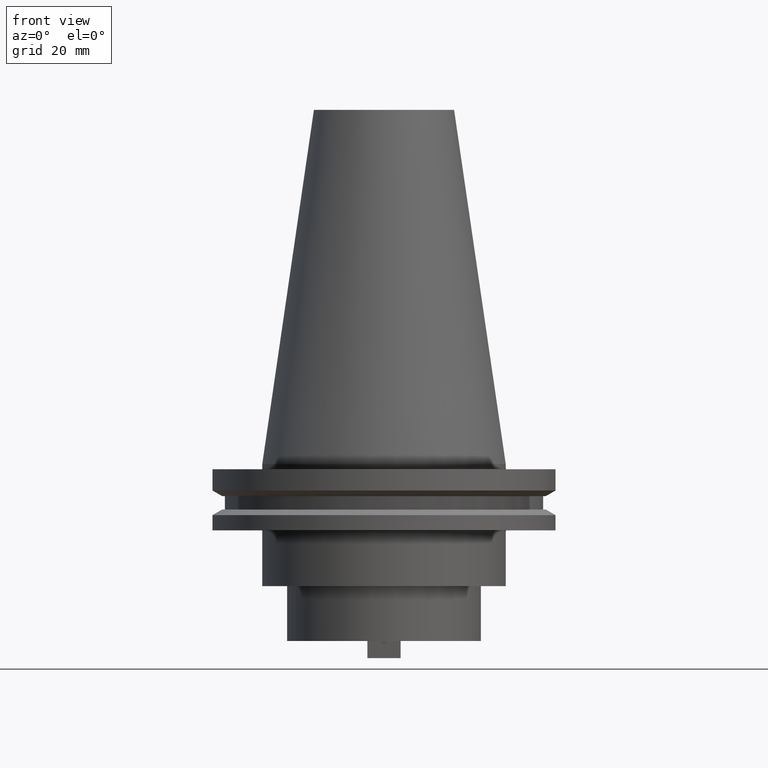
[diagram: clean part render]
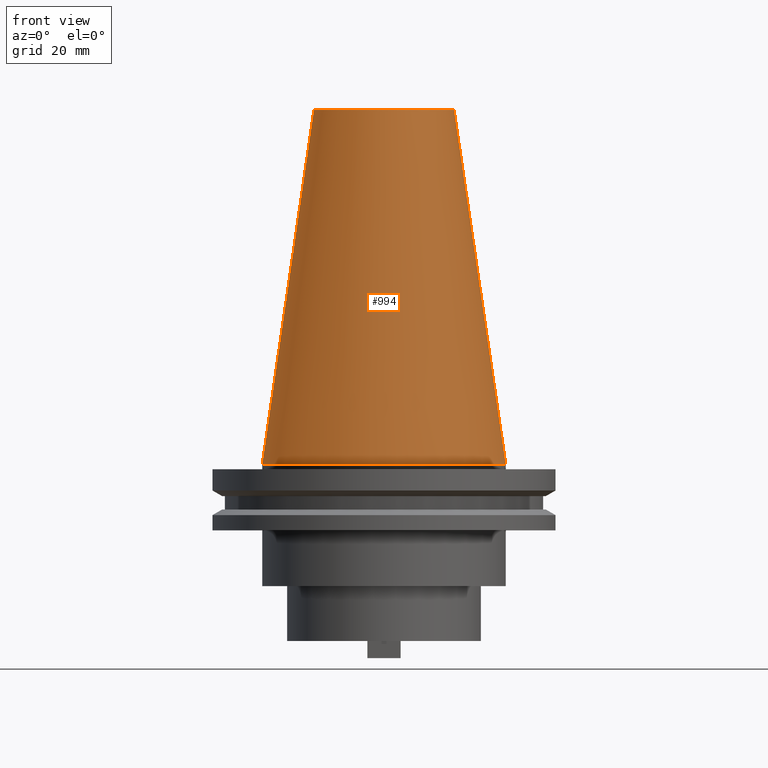
[diagram: same view with one face highlighted and labeled with its STEP entity id]
A machine part, front view. The second image highlights one B-rep face of the part: STEP entity #994.
In plain terms, the highlighted conical surface has half-angle 8.297 deg.
Its self-contained STEP definition (entity closure, byte-faithful):
#66 = DIRECTION ( 'NONE',  ( 0.1443082272672999988, 1.767266086135277066E-17, -0.9895327864921755756 ) ) ;
#112 = DIRECTION ( 'NONE',  ( 1.000000000000000000, 0.000000000000000000, 0.000000000000000000 ) ) ;
#113 = EDGE_CURVE ( 'NONE', #477, #471, #862, .T. ) ;
#122 = DIRECTION ( 'NONE',  ( -0.000000000000000000, -0.000000000000000000, 1.000000000000000000 ) ) ;
#123 = DIRECTION ( 'NONE',  ( -0.1443082272672999988, 0.000000000000000000, -0.9895327864921755756 ) ) ;
#260 = CARTESIAN_POINT ( 'NONE',  ( 34.92499999999999005, 4.277078946022130098E-15, 0.000000000000000000 ) ) ;
#266 = CONICAL_SURFACE ( 'NONE', #511, 34.92499999999999005, 0.1448138465474119452 ) ;
#328 = VECTOR ( 'NONE', #123, 999.9999999999998863 ) ;
#342 = LINE ( 'NONE', #952, #328 ) ;
#392 = AXIS2_PLACEMENT_3D ( 'NONE', #448, #855, #780 ) ;
#406 = EDGE_CURVE ( 'NONE', #471, #497, #571, .T. ) ;
#407 = CARTESIAN_POINT ( 'NONE',  ( -20.10819343178871321, 0.000000000000000000, 101.5999999999999801 ) ) ;
#414 = VERTEX_POINT ( 'NONE', #987 ) ;
#448 = CARTESIAN_POINT ( 'NONE',  ( 0.000000000000000000, 0.000000000000000000, 101.5999999999999801 ) ) ;
#460 = ORIENTED_EDGE ( 'NONE', *, *, #1032, .T. ) ;
#471 = VERTEX_POINT ( 'NONE', #587 ) ;
#477 = VERTEX_POINT ( 'NONE', #407 ) ;
#497 = VERTEX_POINT ( 'NONE', #260 ) ;
#499 = EDGE_CURVE ( 'NONE', #477, #414, #342, .T. ) ;
#511 = AXIS2_PLACEMENT_3D ( 'NONE', #534, #528, #764 ) ;
#528 = DIRECTION ( 'NONE',  ( 0.000000000000000000, 0.000000000000000000, -1.000000000000000000 ) ) ;
#534 = CARTESIAN_POINT ( 'NONE',  ( 0.000000000000000000, 0.000000000000000000, 0.000000000000000000 ) ) ;
#541 = FACE_OUTER_BOUND ( 'NONE', #586, .T. ) ;
#571 = LINE ( 'NONE', #898, #598 ) ;
#583 = CIRCLE ( 'NONE', #683, 34.92499999999999005 ) ;
#586 = EDGE_LOOP ( 'NONE', ( #714, #969, #670, #460 ) ) ;
#587 = CARTESIAN_POINT ( 'NONE',  ( 20.10819343178871321, 3.369811209154858606E-15, 101.5999999999999801 ) ) ;
#598 = VECTOR ( 'NONE', #66, 999.9999999999998863 ) ;
#670 = ORIENTED_EDGE ( 'NONE', *, *, #499, .T. ) ;
#683 = AXIS2_PLACEMENT_3D ( 'NONE', #1039, #122, #112 ) ;
#714 = ORIENTED_EDGE ( 'NONE', *, *, #406, .F. ) ;
#764 = DIRECTION ( 'NONE',  ( -1.000000000000000000, 0.000000000000000000, 0.000000000000000000 ) ) ;
#780 = DIRECTION ( 'NONE',  ( 1.000000000000000000, 0.000000000000000000, 0.000000000000000000 ) ) ;
#855 = DIRECTION ( 'NONE',  ( -0.000000000000000000, -0.000000000000000000, 1.000000000000000000 ) ) ;
#862 = CIRCLE ( 'NONE', #392, 20.10819343178871321 ) ;
#898 = CARTESIAN_POINT ( 'NONE',  ( 34.92499999999999005, 4.277078946022130098E-15, 0.000000000000000000 ) ) ;
#952 = CARTESIAN_POINT ( 'NONE',  ( -34.92499999999999005, 0.000000000000000000, 0.000000000000000000 ) ) ;
#969 = ORIENTED_EDGE ( 'NONE', *, *, #113, .F. ) ;
#987 = CARTESIAN_POINT ( 'NONE',  ( -34.92499999999999005, 0.000000000000000000, 0.000000000000000000 ) ) ;
#994 = ADVANCED_FACE ( 'NONE', ( #541 ), #266, .T. ) ;
#1032 = EDGE_CURVE ( 'NONE', #414, #497, #583, .T. ) ;
#1039 = CARTESIAN_POINT ( 'NONE',  ( 0.000000000000000000, 0.000000000000000000, 0.000000000000000000 ) ) ;